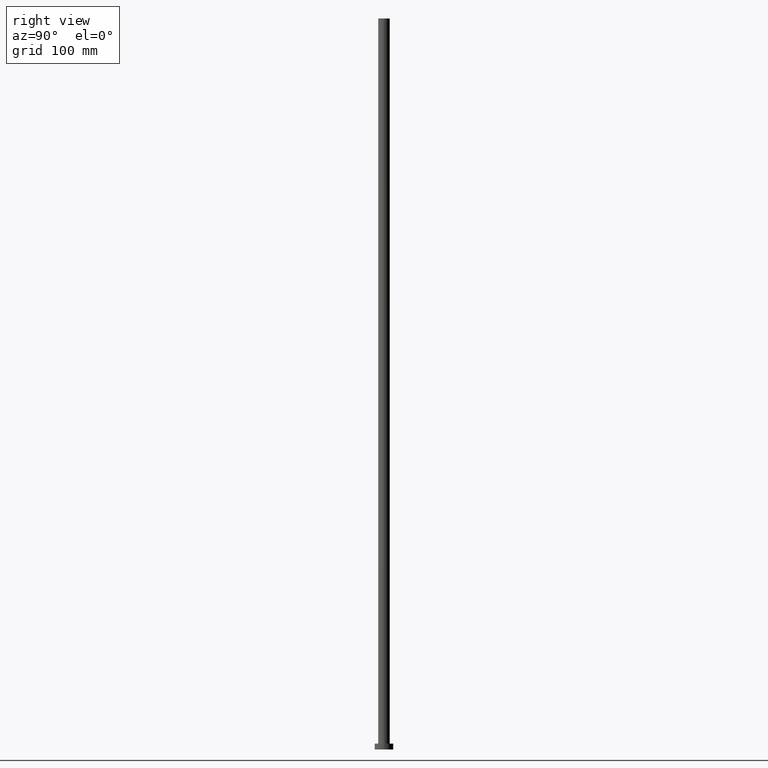
[diagram: clean part render]
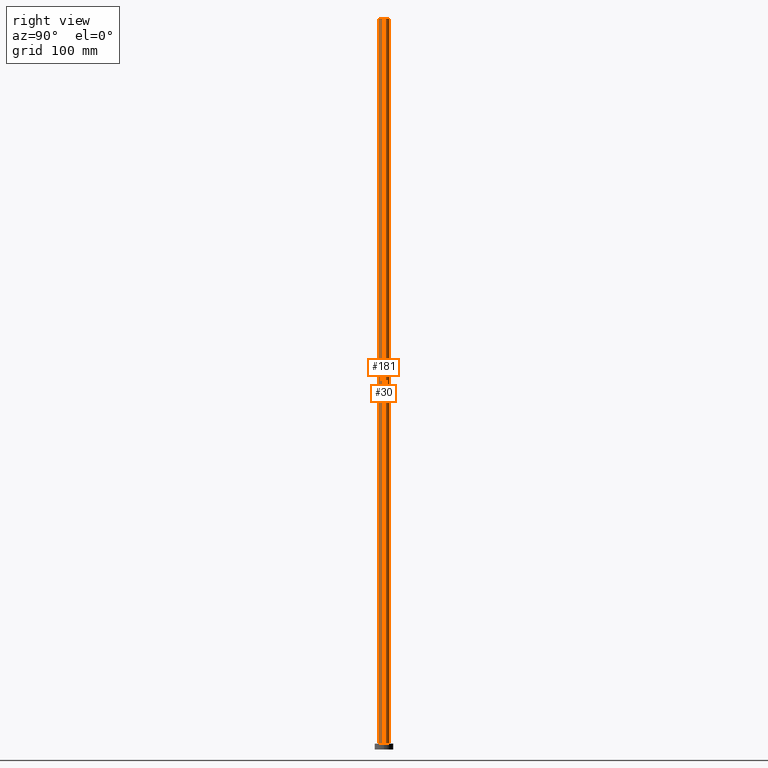
[diagram: same view with one multi-face feature highlighted, each face labeled with its STEP entity id]
A machine part, right view. The highlighted faces form ONE feature: a constant-radius fillet chain: 2 tangent blend faces with common blend radius 5 mm. The faces share edges in the B-rep.
Their STEP definitions:
[1] entity #30 (Cylinder):
#5 = LINE ( 'NONE', #28, #215 ) ;
#8 = DIRECTION ( 'NONE',  ( 1.000000000000000000, 0.000000000000000000, 0.000000000000000000 ) ) ;
#13 = CARTESIAN_POINT ( 'NONE',  ( 5.000000000000000888, 6.123233995736767268E-16, 630.0000000000000000 ) ) ;
#22 = CYLINDRICAL_SURFACE ( 'NONE', #47, 5.000000000000000888 ) ;
#28 = CARTESIAN_POINT ( 'NONE',  ( -5.000000000000000888, 0.000000000000000000, 630.0000000000000000 ) ) ;
#30 = ADVANCED_FACE ( 'NONE', ( #122 ), #22, .T. ) ;
#38 = CIRCLE ( 'NONE', #188, 5.000000000000000888 ) ;
#46 = ORIENTED_EDGE ( 'NONE', *, *, #186, .T. ) ;
#47 = AXIS2_PLACEMENT_3D ( 'NONE', #78, #142, #204 ) ;
#48 = LINE ( 'NONE', #13, #247 ) ;
#50 = DIRECTION ( 'NONE',  ( -0.000000000000000000, -0.000000000000000000, -1.000000000000000000 ) ) ;
#53 = EDGE_CURVE ( 'NONE', #180, #182, #106, .T. ) ;
#63 = CARTESIAN_POINT ( 'NONE',  ( -5.000000000000000888, 0.000000000000000000, 5.000000000000000000 ) ) ;
#69 = EDGE_CURVE ( 'NONE', #182, #97, #5, .T. ) ;
#70 = EDGE_LOOP ( 'NONE', ( #75, #46, #216, #217 ) ) ;
#75 = ORIENTED_EDGE ( 'NONE', *, *, #53, .F. ) ;
#78 = CARTESIAN_POINT ( 'NONE',  ( 0.000000000000000000, 0.000000000000000000, 630.0000000000000000 ) ) ;
#85 = VERTEX_POINT ( 'NONE', #199 ) ;
#97 = VERTEX_POINT ( 'NONE', #63 ) ;
#105 = CARTESIAN_POINT ( 'NONE',  ( 0.000000000000000000, 0.000000000000000000, 5.000000000000000000 ) ) ;
#106 = CIRCLE ( 'NONE', #255, 5.000000000000000888 ) ;
#122 = FACE_OUTER_BOUND ( 'NONE', #70, .T. ) ;
#142 = DIRECTION ( 'NONE',  ( -0.000000000000000000, -0.000000000000000000, -1.000000000000000000 ) ) ;
#154 = DIRECTION ( 'NONE',  ( -0.000000000000000000, -0.000000000000000000, -1.000000000000000000 ) ) ;
#160 = CARTESIAN_POINT ( 'NONE',  ( 0.000000000000000000, 0.000000000000000000, 630.0000000000000000 ) ) ;
#163 = CARTESIAN_POINT ( 'NONE',  ( -5.000000000000000888, 0.000000000000000000, 630.0000000000000000 ) ) ;
#180 = VERTEX_POINT ( 'NONE', #211 ) ;
#182 = VERTEX_POINT ( 'NONE', #163 ) ;
#184 = EDGE_CURVE ( 'NONE', #85, #97, #38, .T. ) ;
#186 = EDGE_CURVE ( 'NONE', #180, #85, #48, .T. ) ;
#188 = AXIS2_PLACEMENT_3D ( 'NONE', #105, #191, #8 ) ;
#191 = DIRECTION ( 'NONE',  ( 0.000000000000000000, 0.000000000000000000, 1.000000000000000000 ) ) ;
#199 = CARTESIAN_POINT ( 'NONE',  ( 5.000000000000000888, 6.123233995736767268E-16, 5.000000000000000000 ) ) ;
#204 = DIRECTION ( 'NONE',  ( -1.000000000000000000, 0.000000000000000000, 0.000000000000000000 ) ) ;
#208 = DIRECTION ( 'NONE',  ( 1.000000000000000000, 0.000000000000000000, 0.000000000000000000 ) ) ;
#211 = CARTESIAN_POINT ( 'NONE',  ( 5.000000000000000888, 6.123233995736767268E-16, 630.0000000000000000 ) ) ;
#215 = VECTOR ( 'NONE', #50, 1000.000000000000000 ) ;
#216 = ORIENTED_EDGE ( 'NONE', *, *, #184, .T. ) ;
#217 = ORIENTED_EDGE ( 'NONE', *, *, #69, .F. ) ;
#240 = DIRECTION ( 'NONE',  ( 0.000000000000000000, 0.000000000000000000, 1.000000000000000000 ) ) ;
#247 = VECTOR ( 'NONE', #154, 1000.000000000000000 ) ;
#255 = AXIS2_PLACEMENT_3D ( 'NONE', #160, #240, #208 ) ;
[2] entity #181 (Cylinder):
#5 = LINE ( 'NONE', #28, #215 ) ;
#12 = CARTESIAN_POINT ( 'NONE',  ( 0.000000000000000000, 0.000000000000000000, 5.000000000000000000 ) ) ;
#13 = CARTESIAN_POINT ( 'NONE',  ( 5.000000000000000888, 6.123233995736767268E-16, 630.0000000000000000 ) ) ;
#26 = DIRECTION ( 'NONE',  ( -0.000000000000000000, -0.000000000000000000, -1.000000000000000000 ) ) ;
#28 = CARTESIAN_POINT ( 'NONE',  ( -5.000000000000000888, 0.000000000000000000, 630.0000000000000000 ) ) ;
#35 = ORIENTED_EDGE ( 'NONE', *, *, #69, .T. ) ;
#39 = AXIS2_PLACEMENT_3D ( 'NONE', #252, #71, #157 ) ;
#48 = LINE ( 'NONE', #13, #247 ) ;
#50 = DIRECTION ( 'NONE',  ( -0.000000000000000000, -0.000000000000000000, -1.000000000000000000 ) ) ;
#61 = FACE_OUTER_BOUND ( 'NONE', #253, .T. ) ;
#63 = CARTESIAN_POINT ( 'NONE',  ( -5.000000000000000888, 0.000000000000000000, 5.000000000000000000 ) ) ;
#69 = EDGE_CURVE ( 'NONE', #182, #97, #5, .T. ) ;
#71 = DIRECTION ( 'NONE',  ( 0.000000000000000000, 0.000000000000000000, 1.000000000000000000 ) ) ;
#85 = VERTEX_POINT ( 'NONE', #199 ) ;
#91 = ORIENTED_EDGE ( 'NONE', *, *, #168, .T. ) ;
#97 = VERTEX_POINT ( 'NONE', #63 ) ;
#100 = DIRECTION ( 'NONE',  ( 0.000000000000000000, 0.000000000000000000, 1.000000000000000000 ) ) ;
#110 = AXIS2_PLACEMENT_3D ( 'NONE', #12, #100, #245 ) ;
#113 = ORIENTED_EDGE ( 'NONE', *, *, #243, .F. ) ;
#120 = CIRCLE ( 'NONE', #39, 5.000000000000000888 ) ;
#123 = DIRECTION ( 'NONE',  ( -1.000000000000000000, 0.000000000000000000, 0.000000000000000000 ) ) ;
#146 = CARTESIAN_POINT ( 'NONE',  ( 0.000000000000000000, 0.000000000000000000, 630.0000000000000000 ) ) ;
#154 = DIRECTION ( 'NONE',  ( -0.000000000000000000, -0.000000000000000000, -1.000000000000000000 ) ) ;
#157 = DIRECTION ( 'NONE',  ( 1.000000000000000000, 0.000000000000000000, 0.000000000000000000 ) ) ;
#163 = CARTESIAN_POINT ( 'NONE',  ( -5.000000000000000888, 0.000000000000000000, 630.0000000000000000 ) ) ;
#165 = CYLINDRICAL_SURFACE ( 'NONE', #193, 5.000000000000000888 ) ;
#168 = EDGE_CURVE ( 'NONE', #97, #85, #225, .T. ) ;
#173 = ORIENTED_EDGE ( 'NONE', *, *, #186, .F. ) ;
#180 = VERTEX_POINT ( 'NONE', #211 ) ;
#181 = ADVANCED_FACE ( 'NONE', ( #61 ), #165, .T. ) ;
#182 = VERTEX_POINT ( 'NONE', #163 ) ;
#186 = EDGE_CURVE ( 'NONE', #180, #85, #48, .T. ) ;
#193 = AXIS2_PLACEMENT_3D ( 'NONE', #146, #26, #123 ) ;
#199 = CARTESIAN_POINT ( 'NONE',  ( 5.000000000000000888, 6.123233995736767268E-16, 5.000000000000000000 ) ) ;
#211 = CARTESIAN_POINT ( 'NONE',  ( 5.000000000000000888, 6.123233995736767268E-16, 630.0000000000000000 ) ) ;
#215 = VECTOR ( 'NONE', #50, 1000.000000000000000 ) ;
#225 = CIRCLE ( 'NONE', #110, 5.000000000000000888 ) ;
#243 = EDGE_CURVE ( 'NONE', #182, #180, #120, .T. ) ;
#245 = DIRECTION ( 'NONE',  ( 1.000000000000000000, 0.000000000000000000, 0.000000000000000000 ) ) ;
#247 = VECTOR ( 'NONE', #154, 1000.000000000000000 ) ;
#252 = CARTESIAN_POINT ( 'NONE',  ( 0.000000000000000000, 0.000000000000000000, 630.0000000000000000 ) ) ;
#253 = EDGE_LOOP ( 'NONE', ( #173, #113, #35, #91 ) ) ;